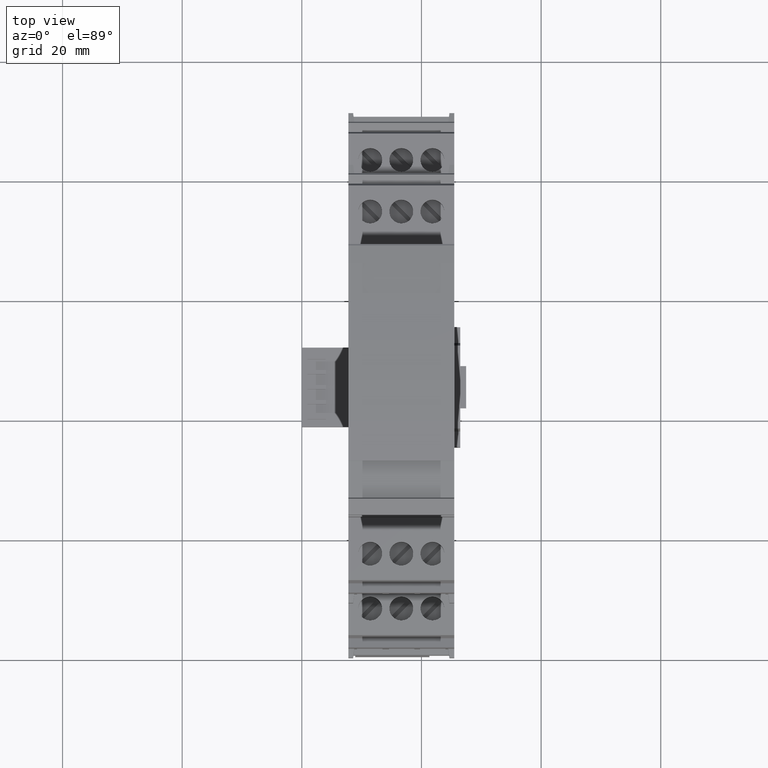
[diagram: clean part render]
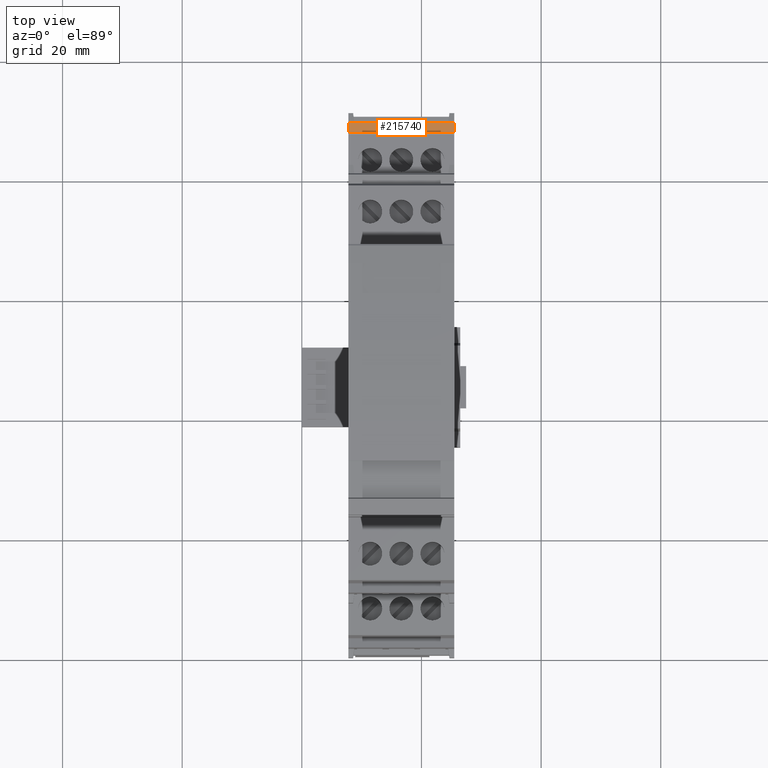
[diagram: same view with one face highlighted and labeled with its STEP entity id]
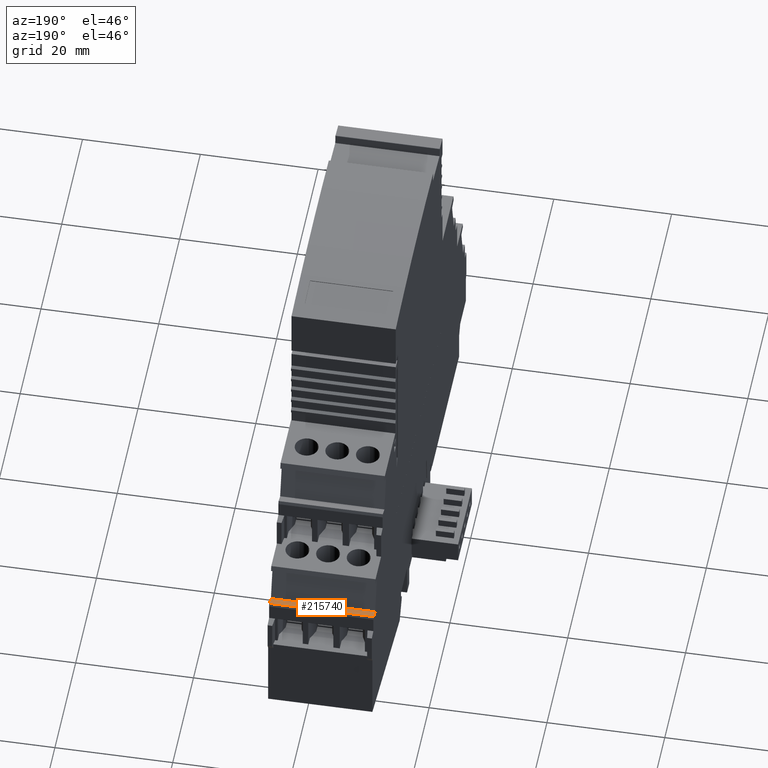
[diagram: same view with one face highlighted and labeled with its STEP entity id]
A machine part, top view. The second image highlights one B-rep face of the part: STEP entity #215740.
A second angle (auxiliary view) of the same face is appended — the face is thin or edge-on in the first view.
In plain terms, the highlighted planar face has unit normal (0, 0.2639, -0.9646).
Its self-contained STEP definition (entity closure, byte-faithful):
#1950=CARTESIAN_POINT('',(160.472249673886,48.7289071291908,
-0.938341446565488));
#1960=VERTEX_POINT('',#1950);
#1990=CARTESIAN_POINT('',(85.4518755928881,28.2056551801731,
-0.938341445655912));
#2000=DIRECTION('',(0.964557418457773,0.263873049965463,
-1.19815861507196E-11));
#2010=VECTOR('',#2000,1.);
#2020=LINE('',#1990,#2010);
#2030=CARTESIAN_POINT('',(162.015541543419,49.1511040091355,
-0.938341446583841));
#2040=VERTEX_POINT('',#2030);
#2050=EDGE_CURVE('',#1960,#2040,#2020,.T.);
#43360=CARTESIAN_POINT('',(162.015541543414,49.1511040083574,
-18.638341443042));
#43370=VERTEX_POINT('',#43360);
#43400=CARTESIAN_POINT('',(85.4518755936615,28.2056551796078,
-18.6383414421111));
#43410=DIRECTION('',(0.964557418457773,0.263873049965463,
-1.1727234055778E-11));
#43420=VECTOR('',#43410,1.);
#43430=LINE('',#43400,#43420);
#43440=CARTESIAN_POINT('',(160.472249673882,48.7289071284127,
-18.6383414430232));
#43450=VERTEX_POINT('',#43440);
#43460=EDGE_CURVE('',#43450,#43370,#43430,.T.);
#89000=CARTESIAN_POINT('',(160.472249673886,48.7289071291908,
-0.938341440695178));
#89010=DIRECTION('',(2.63640962876091E-13,4.39608926050624E-11,1.));
#89020=VECTOR('',#89010,1.);
#89030=LINE('',#89000,#89020);
#89040=EDGE_CURVE('',#43450,#1960,#89030,.T.);
#89350=CARTESIAN_POINT('',(162.015541543419,49.1511040091355,
-0.938341440646129));
#89360=DIRECTION('',(-2.63640962876098E-13,-4.39608926050624E-11,-1.));
#89370=VECTOR('',#89360,1.);
#89380=LINE('',#89350,#89370);
#89390=EDGE_CURVE('',#2040,#43370,#89380,.T.);
#215630=CARTESIAN_POINT('',(161.504326111632,49.0112512918758,
-18.6383414435777));
#215640=DIRECTION('',(0.263873049965463,-0.964557418457773,
4.23332373392685E-11));
#215650=DIRECTION('',(0.964557418457773,0.263873049965463,
-1.18543916574535E-11));
#215660=AXIS2_PLACEMENT_3D('',#215630,#215640,#215650);
#215670=PLANE('',#215660);
#215680=ORIENTED_EDGE('',*,*,#43460,.F.);
#215690=ORIENTED_EDGE('',*,*,#89390,.T.);
#215700=ORIENTED_EDGE('',*,*,#2050,.T.);
#215710=ORIENTED_EDGE('',*,*,#89040,.T.);
#215720=EDGE_LOOP('',(#215710,#215700,#215690,#215680));
#215730=FACE_OUTER_BOUND('',#215720,.T.);
#215740=ADVANCED_FACE('',(#215730),#215670,.F.);